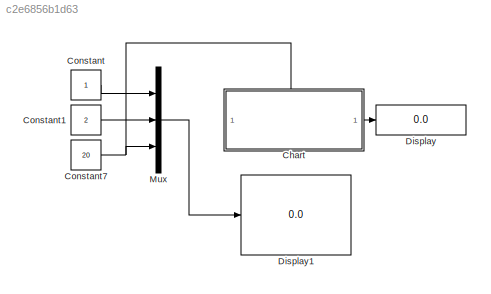
MODEL slx_c2e6856b1d63
KIND model
CONFIG AbsTol = auto
CONFIG EnableMultiTasking = off
CONFIG FixedStep = 0.5
CONFIG MaxStep = auto
CONFIG MinStep = auto
CONFIG RelTol = 1e-3
CONFIG SampleTimeConstraint = Unconstrained
CONFIG SolverName = FixedStepAuto
CONFIG StartTime = 0.0
CONFIG StopTime = 10.0
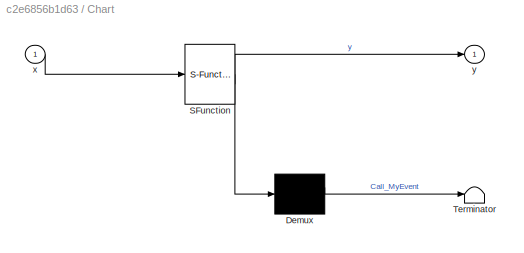
BLOCK [SubSystem] Chart
  ErrorFcn = Stateflow.Translate.translate
  PermitHierarchicalResolution = ExplicitOnly
  PortSchema = {"entries":[{"content":{"sides":[{"content":{},"type":"ConnectorPlacement.EquallySpacedRectSide","uuid":"9adf76ed-892e-443b-b06a-ec5970ab0687"},{"content":{"connectorIds":["Out1"],"side":"RIGHT"},"type":"ConnectorPlacement.EquallySpacedRectSide","uuid":"4f720c27-37cd-4973-af1a-7b66fef4a1df"},{"content":{"connectorIds":["In1"],"side":"TOP"},"type":"ConnectorPlacement.EquallySpacedRectSide","uuid":"...<+223ch>
  SFBlockType = Chart
  TreatAsAtomicUnit = on
BLOCK [Demux] Chart/ Demux 
  Outputs = 1
BLOCK [S-Function] Chart/ SFunction 
  EnableBusSupport = on
  FunctionName = sf_sfun
  PortCounts = [1 2]
  SFcnIsStateOwnerBlock = off
  SFunctionDeploymentMode = off
  Tag = Stateflow S-Function 3
BLOCK [Terminator] Chart/ Terminator 
BLOCK [Inport] Chart/x
BLOCK [Outport] Chart/y
BLOCK [Constant] Constant
  OutDataTypeStr = uint8
BLOCK [Constant] Constant1
  OutDataTypeStr = uint8
  Value = 2
BLOCK [Constant] Constant7
  OutDataTypeStr = uint8
  Value = 20
BLOCK [Display] Display
  Decimation = 1
BLOCK [Display] Display1
  Decimation = 1
BLOCK [Mux] Mux
  DisplayOption = bar
  Inputs = 3
LINE Chart:1 -> Display:1
LINE Constant1:1 -> Mux:2
NET Constant7:1 -> Chart:1, Mux:3
LINE Constant:1 -> Mux:1
LINE Mux:1 -> Display1:1
note: NET lines group one-source signal fan-out (src -> all destinations, sorted); 1:1 wires keep LINE
CHART Chart states=8 transitions=15
  STATE_LABEL '/*status condition */'
  STATE_LABEL '/*case 1*/'
  STATE_LABEL '/*case 1 action*/'
  STATE_LABEL '/*case 2*/'
  STATE_LABEL '/*case 2 action*/'
  STATE_LABEL '/*case 3*/'
  STATE_LABEL '/*case 3 action*/'
  STATE_LABEL '/*terminate point */'
CHART  states=0 transitions=0
